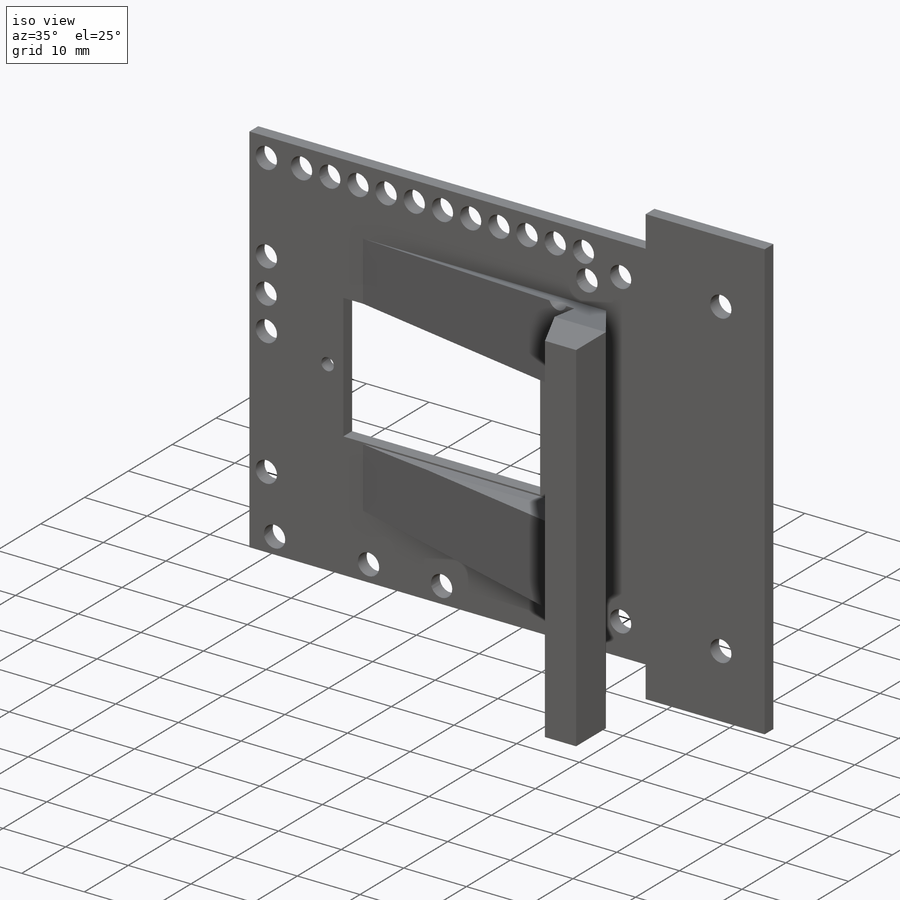
[diagram: iso view]
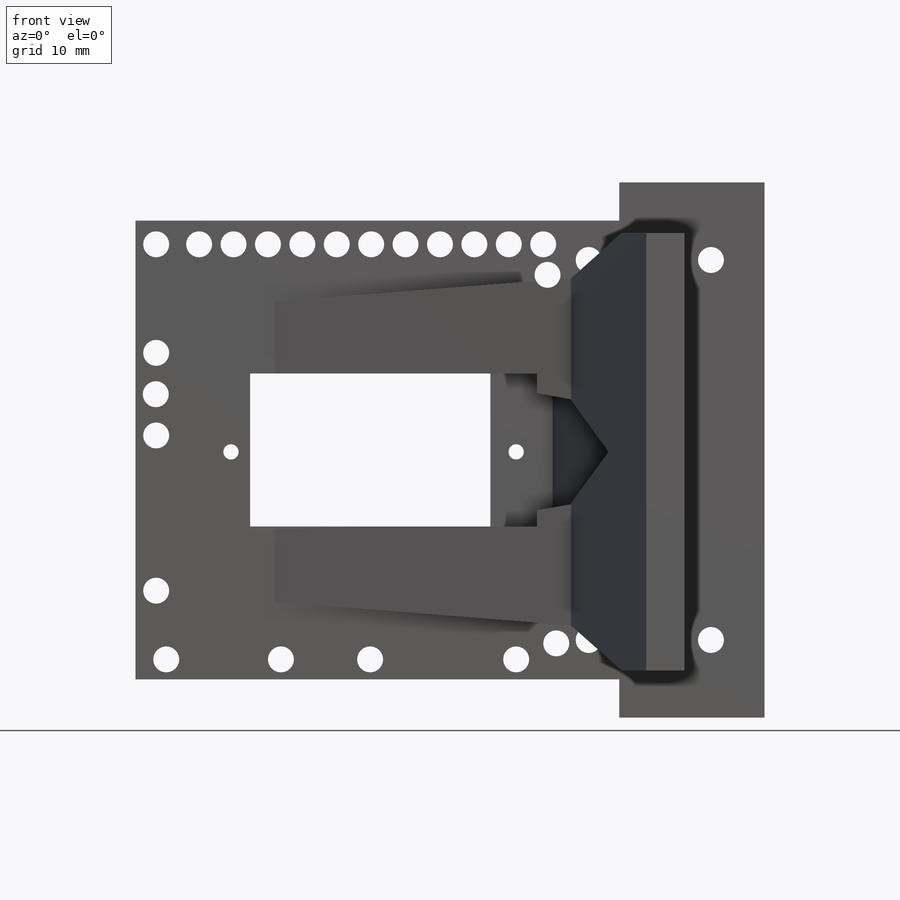
[diagram: front view]
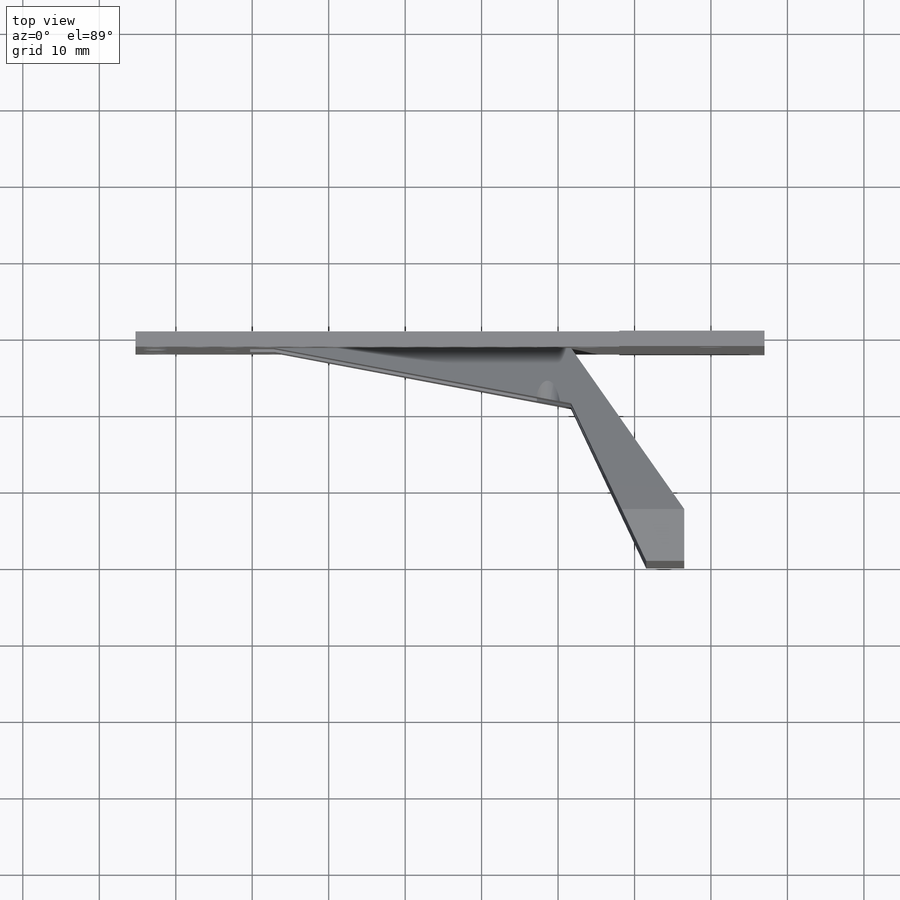
[diagram: top view]
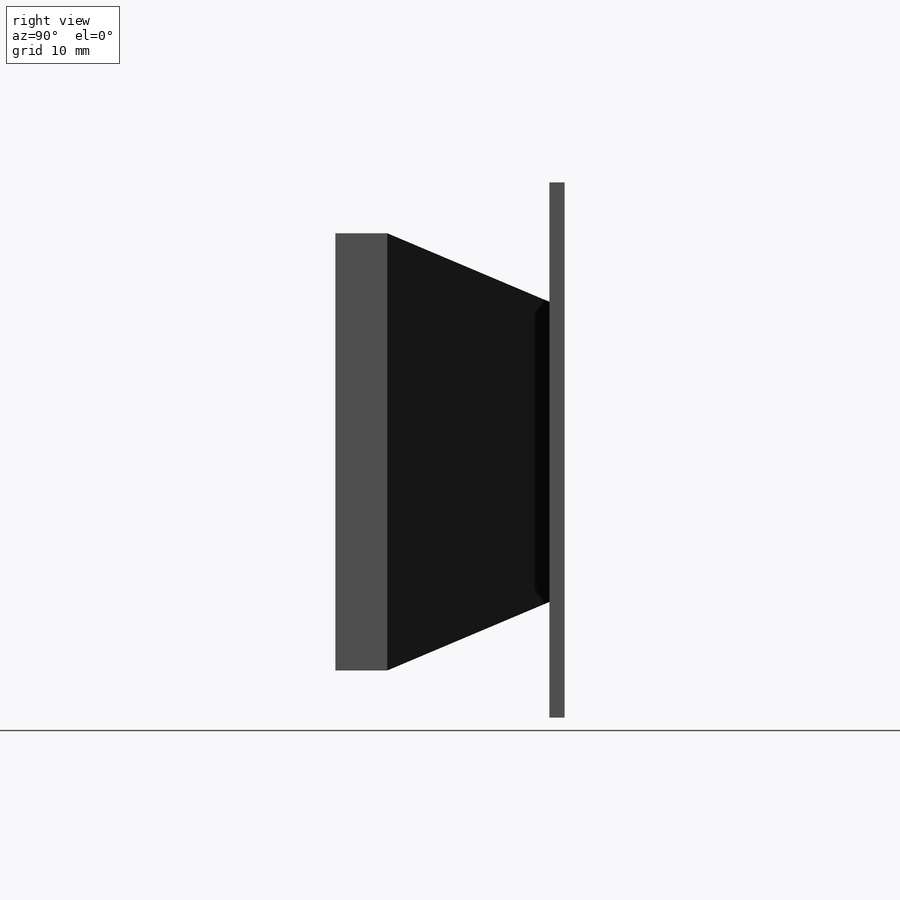
[diagram: right view]
SOLIDWORKS PART (.sldprt)
format: sldprt  version: not decoded by parser v0  size: 985,600 bytes
history: native  units: mm
features: sketch x13, cut_extrude x8, extrude x4, plane x3, material x1 (+10 scaffold rows collapsed)
feature tree (39):
  scaffold x10  (default folders/planes/origin — collapsed)
  material  "Matériau <non spécifié>"
  plane  "Plan de face"
  plane  "Plan de dessus"
  plane  "Plan de droite"
  sketch  "Esquisse1"  dims[c1.D1=~1.743957mm c1.D2=~10.36389mm c2.D1=49.7mm c2.D2=7.0mm c2.D3=70.0mm c2.D4=0.0mm c2.D5=12.0mm]
  extrude  "Boss.-Extru.1"  Depth=2mm
  sketch  "Esquisse2"  dims[D1=30.0mm D2=65.0mm]
  extrude  "Boss.-Extru.2"  Depth=2mm
  sketch  "Esquisse3"  dims[c1.D1=~3.155677mm c1.D4=~1.103609mm c1.D5=~2.345471mm c1.D6=~1.83034mm c1.D7=~2.290396mm c1.D8=~2.337144mm c1.D10=~2.207608mm c1.D11=~1.299402mm c1.D12=~2.38258mm c1.D13=~1.440391mm c1.D14=1.85mm c2.D5=3.4mm c2.D4=3.4mm c2.D6=3.4mm c2.D7=~2.159687mm c2.D1=48.0mm c2.D2=35.0mm c2.D3=47.0mm c3.D4=37.3mm c3.D5=19.1mm c3.D6=12.0mm c3.D7=15.0mm c3.D8=12.0mm c3.D9=43.0mm c3.D10=21.0mm c3.D11=20.3mm c3.D12=14.2mm c3.D13=19.1mm c4.D5=15.0mm c4.D4=10.8mm c4.D6=14.2mm c4.D7=11.0]
  cut_extrude  "Enlèv. mat.-Extru.1"  Depth=2mm
  sketch  "Esquisse4"  dims[D1=16.0mm]
  cut_extrude  "Enlèv. mat.-Extru.2"  Depth=2mm
  sketch  "Esquisse5"  dims[D1=20.0mm D2=20.0mm D3=15.0mm]
  cut_extrude  "Enlèv. mat.-Extru.3"  Depth=10mm
  sketch  "Esquisse9"  dims[c1.D1=3.5mm c1.D2=3.5mm c2.D1=3.5mm c2.D2=3.5mm]
  extrude  "Boss.-Extru.7"  Depth=28mm
  sketch  "Esquisse10"
  cut_extrude  "Enlèv. mat.-Extru.4"  Depth=60mm
  sketch  "Esquisse11"
  cut_extrude  "Enlèv. mat.-Extru.5"  Depth=72mm
  sketch  "Esquisse12"  dims[D1=~12.517963mm]
  cut_extrude  "Enlèv. mat.-Extru.6"  Depth=67mm
  sketch  "Esquisse13"  dims[D1=~4.324654mm]
  cut_extrude  "Enlèv. mat.-Extru.7"  Depth=35mm
  sketch  "Esquisse14"
  extrude  "Boss.-Extru.11"  Depth=2mm
  sketch  "Esquisse15"  dims[D1=~1.593843mm]
  cut_extrude  "Enlèv. mat.-Extru.8"  Depth=10mm
  sketch  "Esquisse16"
decode coverage: 21 of 25 modeling features carry decoded parameters
note: ~ marks probable driven/reference dimensions
note: suppression state not decoded; provenance and decode notes live in map.json
